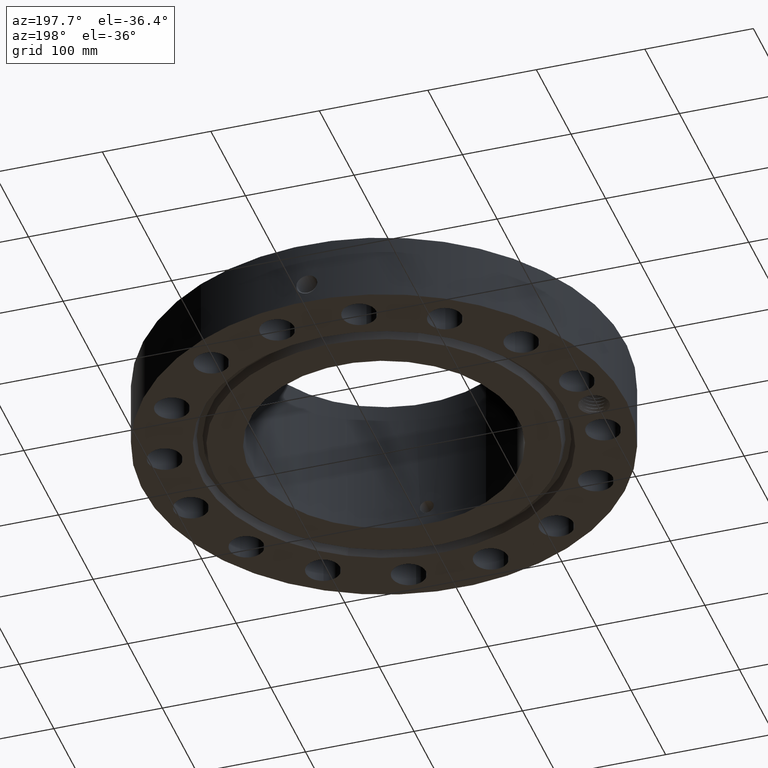
[diagram: clean part render]
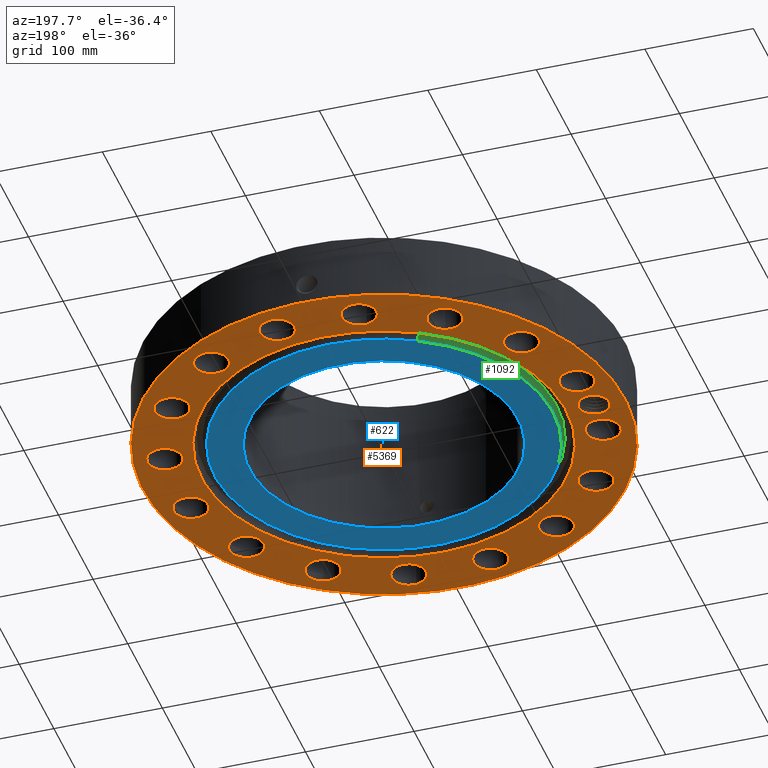
[diagram: same view with three faces highlighted in distinct colors, each labeled with its STEP entity id]
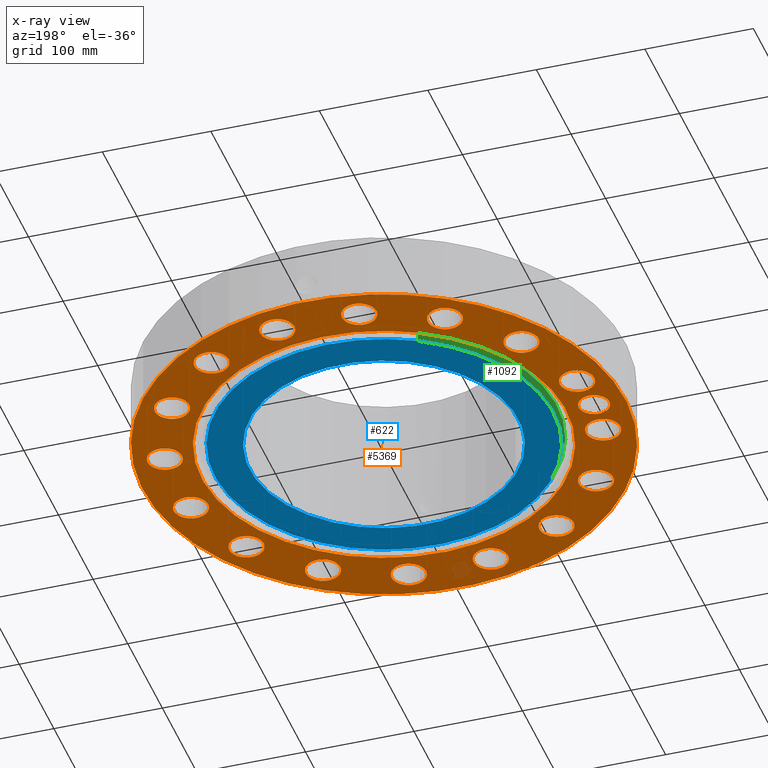
[diagram: x-ray of the same camera — body ghosted, the three highlighted faces saturated]
A machine part, auxiliary view with three faces highlighted in distinct colors.
The next image is the same camera in x-ray (body ghosted, the three faces saturated) — at least one of them is partly hidden behind the body in this view.
Their STEP definitions:

[orange] entity #5369 — the highlighted planar face has unit normal (0, 0, -1).
#598=AXIS2_PLACEMENT_3D('Plane Axis2P3D',#595,#596,#597) ;
#3620=AXIS2_PLACEMENT_3D('Circle Axis2P3D',#3618,#3619,$) ;
#3646=AXIS2_PLACEMENT_3D('Circle Axis2P3D',#3644,#3645,$) ;
#3919=AXIS2_PLACEMENT_3D('Circle Axis2P3D',#3917,#3918,$) ;
#4032=AXIS2_PLACEMENT_3D('Circle Axis2P3D',#4030,#4031,$) ;
#4274=AXIS2_PLACEMENT_3D('Circle Axis2P3D',#4272,#4273,$) ;
#4293=AXIS2_PLACEMENT_3D('Circle Axis2P3D',#4291,#4292,$) ;
#4317=AXIS2_PLACEMENT_3D('Circle Axis2P3D',#4315,#4316,$) ;
#4336=AXIS2_PLACEMENT_3D('Circle Axis2P3D',#4334,#4335,$) ;
#4360=AXIS2_PLACEMENT_3D('Circle Axis2P3D',#4358,#4359,$) ;
#4379=AXIS2_PLACEMENT_3D('Circle Axis2P3D',#4377,#4378,$) ;
#4403=AXIS2_PLACEMENT_3D('Circle Axis2P3D',#4401,#4402,$) ;
#4422=AXIS2_PLACEMENT_3D('Circle Axis2P3D',#4420,#4421,$) ;
#4446=AXIS2_PLACEMENT_3D('Circle Axis2P3D',#4444,#4445,$) ;
#4465=AXIS2_PLACEMENT_3D('Circle Axis2P3D',#4463,#4464,$) ;
#4489=AXIS2_PLACEMENT_3D('Circle Axis2P3D',#4487,#4488,$) ;
#4508=AXIS2_PLACEMENT_3D('Circle Axis2P3D',#4506,#4507,$) ;
#4532=AXIS2_PLACEMENT_3D('Circle Axis2P3D',#4530,#4531,$) ;
#4551=AXIS2_PLACEMENT_3D('Circle Axis2P3D',#4549,#4550,$) ;
#4575=AXIS2_PLACEMENT_3D('Circle Axis2P3D',#4573,#4574,$) ;
#4594=AXIS2_PLACEMENT_3D('Circle Axis2P3D',#4592,#4593,$) ;
#4618=AXIS2_PLACEMENT_3D('Circle Axis2P3D',#4616,#4617,$) ;
#4637=AXIS2_PLACEMENT_3D('Circle Axis2P3D',#4635,#4636,$) ;
#4661=AXIS2_PLACEMENT_3D('Circle Axis2P3D',#4659,#4660,$) ;
#4680=AXIS2_PLACEMENT_3D('Circle Axis2P3D',#4678,#4679,$) ;
#4704=AXIS2_PLACEMENT_3D('Circle Axis2P3D',#4702,#4703,$) ;
#4723=AXIS2_PLACEMENT_3D('Circle Axis2P3D',#4721,#4722,$) ;
#4747=AXIS2_PLACEMENT_3D('Circle Axis2P3D',#4745,#4746,$) ;
#4766=AXIS2_PLACEMENT_3D('Circle Axis2P3D',#4764,#4765,$) ;
#4790=AXIS2_PLACEMENT_3D('Circle Axis2P3D',#4788,#4789,$) ;
#4809=AXIS2_PLACEMENT_3D('Circle Axis2P3D',#4807,#4808,$) ;
#4833=AXIS2_PLACEMENT_3D('Circle Axis2P3D',#4831,#4832,$) ;
#4852=AXIS2_PLACEMENT_3D('Circle Axis2P3D',#4850,#4851,$) ;
#4876=AXIS2_PLACEMENT_3D('Circle Axis2P3D',#4874,#4875,$) ;
#4895=AXIS2_PLACEMENT_3D('Circle Axis2P3D',#4893,#4894,$) ;
#4919=AXIS2_PLACEMENT_3D('Circle Axis2P3D',#4917,#4918,$) ;
#4938=AXIS2_PLACEMENT_3D('Circle Axis2P3D',#4936,#4937,$) ;
#5249=AXIS2_PLACEMENT_3D('Circle Axis2P3D',#5247,#5248,$) ;
#5258=AXIS2_PLACEMENT_3D('Circle Axis2P3D',#5256,#5257,$) ;
#595=CARTESIAN_POINT('Axis2P3D Location',(0.,4.87500000002,0.)) ;
#3618=CARTESIAN_POINT('Axis2P3D Location',(0.,0.,0.)) ;
#3622=CARTESIAN_POINT('Vertex',(-3.16876309742,5.80038194284,0.)) ;
#3624=CARTESIAN_POINT('Vertex',(3.16876309742,-5.80038194284,0.)) ;
#3644=CARTESIAN_POINT('Axis2P3D Location',(0.,0.,0.)) ;
#3917=CARTESIAN_POINT('Axis2P3D Location',(0.,0.,5.59482469102E-016)) ;
#3921=CARTESIAN_POINT('Vertex',(-4.1949734628,-7.67884741657,5.59482469102E-016)) ;
#3923=CARTESIAN_POINT('Vertex',(4.1949734628,7.67884741657,5.59482469102E-016)) ;
#4030=CARTESIAN_POINT('Axis2P3D Location',(0.,0.,5.59482469102E-016)) ;
#4269=CARTESIAN_POINT('Vertex',(8.02697686429,-1.78720466701,2.79741234551E-016)) ;
#4272=CARTESIAN_POINT('Axis2P3D Location',(7.4784877631,-1.48756370538,0.)) ;
#4276=CARTESIAN_POINT('Vertex',(6.92999866192,-1.18792274375,2.79741234551E-016)) ;
#4291=CARTESIAN_POINT('Axis2P3D Location',(7.4784877631,-1.48756370538,0.)) ;
#4312=CARTESIAN_POINT('Vertex',(5.94788557112,-3.74949318338,0.)) ;
#4315=CARTESIAN_POINT('Axis2P3D Location',(6.33995579383,-4.23622302679,0.)) ;
#4319=CARTESIAN_POINT('Vertex',(6.73202601655,-4.7229528702,2.79741234551E-016)) ;
#4334=CARTESIAN_POINT('Axis2P3D Location',(6.33995579383,-4.23622302679,0.)) ;
#4355=CARTESIAN_POINT('Vertex',(4.06026081983,-5.74023727509,0.)) ;
#4358=CARTESIAN_POINT('Axis2P3D Location',(4.23622302679,-6.33995579383,0.)) ;
#4362=CARTESIAN_POINT('Vertex',(4.41218523376,-6.93967431258,2.79741234551E-016)) ;
#4377=CARTESIAN_POINT('Axis2P3D Location',(4.23622302679,-6.33995579383,0.)) ;
#4398=CARTESIAN_POINT('Vertex',(1.55449816507,-6.85708227704,0.)) ;
#4401=CARTESIAN_POINT('Axis2P3D Location',(1.48756370538,-7.4784877631,0.)) ;
#4405=CARTESIAN_POINT('Vertex',(1.42062924568,-8.09989324917,2.79741234551E-016)) ;
#4420=CARTESIAN_POINT('Axis2P3D Location',(1.48756370538,-7.4784877631,0.)) ;
#4441=CARTESIAN_POINT('Vertex',(-1.18792274375,-6.92999866192,0.)) ;
#4444=CARTESIAN_POINT('Axis2P3D Location',(-1.48756370538,-7.4784877631,0.)) ;
#4448=CARTESIAN_POINT('Vertex',(-1.78720466701,-8.02697686429,2.79741234551E-016)) ;
#4463=CARTESIAN_POINT('Axis2P3D Location',(-1.48756370538,-7.4784877631,0.)) ;
#4484=CARTESIAN_POINT('Vertex',(-3.74949318338,-5.94788557112,0.)) ;
#4487=CARTESIAN_POINT('Axis2P3D Location',(-4.23622302679,-6.33995579383,0.)) ;
#4491=CARTESIAN_POINT('Vertex',(-4.7229528702,-6.73202601655,2.79741234551E-016)) ;
#4506=CARTESIAN_POINT('Axis2P3D Location',(-4.23622302679,-6.33995579383,0.)) ;
#4527=CARTESIAN_POINT('Vertex',(-5.74023727509,-4.06026081983,0.)) ;
#4530=CARTESIAN_POINT('Axis2P3D Location',(-6.33995579383,-4.23622302679,0.)) ;
#4534=CARTESIAN_POINT('Vertex',(-6.93967431258,-4.41218523376,2.79741234551E-016)) ;
#4549=CARTESIAN_POINT('Axis2P3D Location',(-6.33995579383,-4.23622302679,0.)) ;
#4570=CARTESIAN_POINT('Vertex',(-6.85708227704,-1.55449816507,0.)) ;
#4573=CARTESIAN_POINT('Axis2P3D Location',(-7.4784877631,-1.48756370538,0.)) ;
#4577=CARTESIAN_POINT('Vertex',(-8.09989324917,-1.42062924568,2.79741234551E-016)) ;
#4592=CARTESIAN_POINT('Axis2P3D Location',(-7.4784877631,-1.48756370538,0.)) ;
#4613=CARTESIAN_POINT('Vertex',(-6.92999866192,1.18792274375,0.)) ;
#4616=CARTESIAN_POINT('Axis2P3D Location',(-7.4784877631,1.48756370538,0.)) ;
#4620=CARTESIAN_POINT('Vertex',(-8.02697686429,1.78720466701,2.79741234551E-016)) ;
#4635=CARTESIAN_POINT('Axis2P3D Location',(-7.4784877631,1.48756370538,0.)) ;
#4656=CARTESIAN_POINT('Vertex',(-5.94788557112,3.74949318338,0.)) ;
#4659=CARTESIAN_POINT('Axis2P3D Location',(-6.33995579383,4.23622302679,0.)) ;
#4663=CARTESIAN_POINT('Vertex',(-6.73202601655,4.7229528702,2.79741234551E-016)) ;
#4678=CARTESIAN_POINT('Axis2P3D Location',(-6.33995579383,4.23622302679,0.)) ;
#4699=CARTESIAN_POINT('Vertex',(-4.06026081983,5.74023727509,0.)) ;
#4702=CARTESIAN_POINT('Axis2P3D Location',(-4.23622302679,6.33995579383,0.)) ;
#4706=CARTESIAN_POINT('Vertex',(-4.41218523376,6.93967431258,2.79741234551E-016)) ;
#4721=CARTESIAN_POINT('Axis2P3D Location',(-4.23622302679,6.33995579383,0.)) ;
#4742=CARTESIAN_POINT('Vertex',(-1.55449816507,6.85708227704,0.)) ;
#4745=CARTESIAN_POINT('Axis2P3D Location',(-1.48756370538,7.4784877631,0.)) ;
#4749=CARTESIAN_POINT('Vertex',(-1.42062924568,8.09989324917,2.79741234551E-016)) ;
#4764=CARTESIAN_POINT('Axis2P3D Location',(-1.48756370538,7.4784877631,0.)) ;
#4785=CARTESIAN_POINT('Vertex',(1.18792274375,6.92999866192,0.)) ;
#4788=CARTESIAN_POINT('Axis2P3D Location',(1.48756370538,7.4784877631,0.)) ;
#4792=CARTESIAN_POINT('Vertex',(1.78720466701,8.02697686429,2.79741234551E-016)) ;
#4807=CARTESIAN_POINT('Axis2P3D Location',(1.48756370538,7.4784877631,0.)) ;
#4828=CARTESIAN_POINT('Vertex',(3.74949318338,5.94788557112,0.)) ;
#4831=CARTESIAN_POINT('Axis2P3D Location',(4.23622302679,6.33995579383,-2.23792987641E-015)) ;
#4835=CARTESIAN_POINT('Vertex',(4.7229528702,6.73202601655,-1.95818864186E-015)) ;
#4850=CARTESIAN_POINT('Axis2P3D Location',(4.23622302679,6.33995579383,-2.23792987641E-015)) ;
#4871=CARTESIAN_POINT('Vertex',(5.74023727509,4.06026081983,0.)) ;
#4874=CARTESIAN_POINT('Axis2P3D Location',(6.33995579383,4.23622302679,0.)) ;
#4878=CARTESIAN_POINT('Vertex',(6.93967431258,4.41218523376,2.79741234551E-016)) ;
#4893=CARTESIAN_POINT('Axis2P3D Location',(6.33995579383,4.23622302679,0.)) ;
#4914=CARTESIAN_POINT('Vertex',(6.85708227704,1.55449816507,0.)) ;
#4917=CARTESIAN_POINT('Axis2P3D Location',(7.4784877631,1.48756370538,0.)) ;
#4921=CARTESIAN_POINT('Vertex',(8.09989324917,1.42062924568,2.79741234551E-016)) ;
#4936=CARTESIAN_POINT('Axis2P3D Location',(7.4784877631,1.48756370538,0.)) ;
#5247=CARTESIAN_POINT('Axis2P3D Location',(-7.62500000003,-1.67844740731E-015,0.)) ;
#5251=CARTESIAN_POINT('Vertex',(-8.10960109071,0.264738782418,0.)) ;
#5253=CARTESIAN_POINT('Vertex',(-7.10347520258,0.181484780746,0.)) ;
#5256=CARTESIAN_POINT('Axis2P3D Location',(-7.62500000003,-1.67844740731E-015,0.)) ;
#5260=CARTESIAN_POINT('Vertex',(-7.16095699738,-0.299314102055,0.)) ;
#5264=CARTESIAN_POINT('Control Point',(-7.06645770177,-0.066619324831,0.)) ;
#5265=CARTESIAN_POINT('Control Point',(-7.07416557925,-0.114681631053,0.)) ;
#5266=CARTESIAN_POINT('Control Point',(-7.08705587024,-0.161797235869,0.)) ;
#5267=CARTESIAN_POINT('Control Point',(-7.1049895585,-0.207205787391,0.)) ;
#5268=CARTESIAN_POINT('Control Point',(-7.12870956018,-0.252179608872,0.)) ;
#5269=CARTESIAN_POINT('Control Point',(-7.15712673033,-0.293821482082,0.)) ;
#5270=CARTESIAN_POINT('Control Point',(-7.15839437758,-0.295659032487,0.)) ;
#5271=CARTESIAN_POINT('Control Point',(-7.15967114838,-0.297489925957,0.)) ;
#5272=CARTESIAN_POINT('Control Point',(-7.16095699738,-0.299314102055,0.)) ;
#5273=CARTESIAN_POINT('Vertex',(-7.06645770177,-0.0666193248303,8.74191357973E-018)) ;
#5277=CARTESIAN_POINT('Control Point',(-7.06645770177,-0.0666193248303,0.)) ;
#5278=CARTESIAN_POINT('Control Point',(-7.06541165184,-0.0532892877084,0.)) ;
#5279=CARTESIAN_POINT('Control Point',(-7.06476226065,-0.0399344907738,0.)) ;
#5280=CARTESIAN_POINT('Control Point',(-7.06451065516,-0.0265709294098,0.)) ;
#5281=CARTESIAN_POINT('Control Point',(-7.06465703212,-0.0132147927792,0.)) ;
#5282=CARTESIAN_POINT('Control Point',(-7.06520066568,0.000117592400793,0.)) ;
#5283=CARTESIAN_POINT('Vertex',(-7.06520066568,0.000117592400795,-8.74191357973E-018)) ;
#5287=CARTESIAN_POINT('Control Point',(-7.06520066568,0.000117592400796,0.)) ;
#5288=CARTESIAN_POINT('Control Point',(-7.066723145,0.0374557605832,0.)) ;
#5289=CARTESIAN_POINT('Control Point',(-7.07136135531,0.074607630766,0.)) ;
#5290=CARTESIAN_POINT('Control Point',(-7.07909558712,0.111223558752,0.)) ;
#5291=CARTESIAN_POINT('Control Point',(-7.08984516472,0.146956936874,0.)) ;
#5292=CARTESIAN_POINT('Control Point',(-7.10347520258,0.181484780746,0.)) ;
#596=DIRECTION('Axis2P3D Direction',(0.,0.,-0.0393700787402)) ;
#597=DIRECTION('Axis2P3D XDirection',(0.0393700787402,0.,0.)) ;
#3619=DIRECTION('Axis2P3D Direction',(0.,0.,-0.0393700787402)) ;
#3645=DIRECTION('Axis2P3D Direction',(0.,0.,-0.0393700787402)) ;
#3918=DIRECTION('Axis2P3D Direction',(0.,0.,-0.0393700787402)) ;
#4031=DIRECTION('Axis2P3D Direction',(0.,0.,-0.0393700787402)) ;
#4273=DIRECTION('Axis2P3D Direction',(0.,-0.,-0.0393700787402)) ;
#4292=DIRECTION('Axis2P3D Direction',(0.,-0.,-0.0393700787402)) ;
#4316=DIRECTION('Axis2P3D Direction',(0.,-0.,-0.0393700787402)) ;
#4335=DIRECTION('Axis2P3D Direction',(0.,-0.,-0.0393700787402)) ;
#4359=DIRECTION('Axis2P3D Direction',(0.,-0.,-0.0393700787402)) ;
#4378=DIRECTION('Axis2P3D Direction',(0.,-0.,-0.0393700787402)) ;
#4402=DIRECTION('Axis2P3D Direction',(0.,-0.,-0.0393700787402)) ;
#4421=DIRECTION('Axis2P3D Direction',(0.,-0.,-0.0393700787402)) ;
#4445=DIRECTION('Axis2P3D Direction',(0.,-0.,-0.0393700787402)) ;
#4464=DIRECTION('Axis2P3D Direction',(0.,-0.,-0.0393700787402)) ;
#4488=DIRECTION('Axis2P3D Direction',(-0.,0.,-0.0393700787402)) ;
#4507=DIRECTION('Axis2P3D Direction',(-0.,0.,-0.0393700787402)) ;
#4531=DIRECTION('Axis2P3D Direction',(-0.,0.,-0.0393700787402)) ;
#4550=DIRECTION('Axis2P3D Direction',(-0.,0.,-0.0393700787402)) ;
#4574=DIRECTION('Axis2P3D Direction',(-0.,0.,-0.0393700787402)) ;
#4593=DIRECTION('Axis2P3D Direction',(-0.,0.,-0.0393700787402)) ;
#4617=DIRECTION('Axis2P3D Direction',(-0.,0.,-0.0393700787402)) ;
#4636=DIRECTION('Axis2P3D Direction',(-0.,0.,-0.0393700787402)) ;
#4660=DIRECTION('Axis2P3D Direction',(0.,0.,-0.0393700787402)) ;
#4679=DIRECTION('Axis2P3D Direction',(0.,0.,-0.0393700787402)) ;
#4703=DIRECTION('Axis2P3D Direction',(0.,0.,-0.0393700787402)) ;
#4722=DIRECTION('Axis2P3D Direction',(0.,0.,-0.0393700787402)) ;
#4746=DIRECTION('Axis2P3D Direction',(0.,0.,-0.0393700787402)) ;
#4765=DIRECTION('Axis2P3D Direction',(0.,0.,-0.0393700787402)) ;
#4789=DIRECTION('Axis2P3D Direction',(0.,0.,-0.0393700787402)) ;
#4808=DIRECTION('Axis2P3D Direction',(0.,0.,-0.0393700787402)) ;
#4832=DIRECTION('Axis2P3D Direction',(0.,0.,-0.0393700787402)) ;
#4851=DIRECTION('Axis2P3D Direction',(0.,0.,-0.0393700787402)) ;
#4875=DIRECTION('Axis2P3D Direction',(0.,0.,-0.0393700787402)) ;
#4894=DIRECTION('Axis2P3D Direction',(0.,0.,-0.0393700787402)) ;
#4918=DIRECTION('Axis2P3D Direction',(0.,0.,-0.0393700787402)) ;
#4937=DIRECTION('Axis2P3D Direction',(0.,0.,-0.0393700787402)) ;
#5248=DIRECTION('Axis2P3D Direction',(0.,0.,-0.0393700787402)) ;
#5257=DIRECTION('Axis2P3D Direction',(0.,0.,-0.0393700787402)) ;
#5244=ORIENTED_EDGE('',*,*,#3925,.T.) ;
#5245=ORIENTED_EDGE('',*,*,#4034,.T.) ;
#5295=ORIENTED_EDGE('',*,*,#5255,.F.) ;
#5296=ORIENTED_EDGE('',*,*,#5262,.F.) ;
#5297=ORIENTED_EDGE('',*,*,#5275,.F.) ;
#5298=ORIENTED_EDGE('',*,*,#5285,.T.) ;
#5299=ORIENTED_EDGE('',*,*,#5293,.T.) ;
#5302=ORIENTED_EDGE('',*,*,#4278,.F.) ;
#5303=ORIENTED_EDGE('',*,*,#4295,.F.) ;
#5306=ORIENTED_EDGE('',*,*,#4321,.F.) ;
#5307=ORIENTED_EDGE('',*,*,#4338,.F.) ;
#5310=ORIENTED_EDGE('',*,*,#4364,.F.) ;
#5311=ORIENTED_EDGE('',*,*,#4381,.F.) ;
#5314=ORIENTED_EDGE('',*,*,#4407,.F.) ;
#5315=ORIENTED_EDGE('',*,*,#4424,.F.) ;
#5318=ORIENTED_EDGE('',*,*,#4450,.F.) ;
#5319=ORIENTED_EDGE('',*,*,#4467,.F.) ;
#5322=ORIENTED_EDGE('',*,*,#4493,.F.) ;
#5323=ORIENTED_EDGE('',*,*,#4510,.F.) ;
#5326=ORIENTED_EDGE('',*,*,#4536,.F.) ;
#5327=ORIENTED_EDGE('',*,*,#4553,.F.) ;
#5330=ORIENTED_EDGE('',*,*,#4579,.F.) ;
#5331=ORIENTED_EDGE('',*,*,#4596,.F.) ;
#5334=ORIENTED_EDGE('',*,*,#4622,.F.) ;
#5335=ORIENTED_EDGE('',*,*,#4639,.F.) ;
#5338=ORIENTED_EDGE('',*,*,#4665,.F.) ;
#5339=ORIENTED_EDGE('',*,*,#4682,.F.) ;
#5342=ORIENTED_EDGE('',*,*,#4708,.F.) ;
#5343=ORIENTED_EDGE('',*,*,#4725,.F.) ;
#5346=ORIENTED_EDGE('',*,*,#4751,.F.) ;
#5347=ORIENTED_EDGE('',*,*,#4768,.F.) ;
#5350=ORIENTED_EDGE('',*,*,#4794,.F.) ;
#5351=ORIENTED_EDGE('',*,*,#4811,.F.) ;
#5354=ORIENTED_EDGE('',*,*,#4837,.F.) ;
#5355=ORIENTED_EDGE('',*,*,#4854,.F.) ;
#5358=ORIENTED_EDGE('',*,*,#4880,.F.) ;
#5359=ORIENTED_EDGE('',*,*,#4897,.F.) ;
#5362=ORIENTED_EDGE('',*,*,#4923,.F.) ;
#5363=ORIENTED_EDGE('',*,*,#4940,.F.) ;
#5366=ORIENTED_EDGE('',*,*,#3648,.F.) ;
#5367=ORIENTED_EDGE('',*,*,#3626,.F.) ;
#5300=FACE_BOUND('',#5294,.T.) ;
#5304=FACE_BOUND('',#5301,.T.) ;
#5308=FACE_BOUND('',#5305,.T.) ;
#5312=FACE_BOUND('',#5309,.T.) ;
#5316=FACE_BOUND('',#5313,.T.) ;
#5320=FACE_BOUND('',#5317,.T.) ;
#5324=FACE_BOUND('',#5321,.T.) ;
#5328=FACE_BOUND('',#5325,.T.) ;
#5332=FACE_BOUND('',#5329,.T.) ;
#5336=FACE_BOUND('',#5333,.T.) ;
#5340=FACE_BOUND('',#5337,.T.) ;
#5344=FACE_BOUND('',#5341,.T.) ;
#5348=FACE_BOUND('',#5345,.T.) ;
#5352=FACE_BOUND('',#5349,.T.) ;
#5356=FACE_BOUND('',#5353,.T.) ;
#5360=FACE_BOUND('',#5357,.T.) ;
#5364=FACE_BOUND('',#5361,.T.) ;
#5368=FACE_BOUND('',#5365,.T.) ;
#5369=ADVANCED_FACE('PartBody',(#5246,#5300,#5304,#5308,#5312,#5316,#5320,#5324,#5328,#5332,#5336,#5340,#5344,#5348,#5352,#5356,#5360,#5364,#5368),#599,.T.) ;
#5263=B_SPLINE_CURVE_WITH_KNOTS('',5,(#5264,#5265,#5266,#5267,#5268,#5269,#5270,#5271,#5272),.UNSPECIFIED.,.F.,.U.,(6,3,6),(0.,8.48152375635,8.87454047562),.UNSPECIFIED.) ;
#5276=B_SPLINE_CURVE_WITH_KNOTS('',5,(#5277,#5278,#5279,#5280,#5281,#5282),.UNSPECIFIED.,.F.,.U.,(6,6),(0.,2.32980021669),.UNSPECIFIED.) ;
#5286=B_SPLINE_CURVE_WITH_KNOTS('',5,(#5287,#5288,#5289,#5290,#5291,#5292),.UNSPECIFIED.,.F.,.U.,(6,6),(0.,6.52474940885),.UNSPECIFIED.) ;
#3621=CIRCLE('generated circle',#3620,6.60950000003) ;
#3647=CIRCLE('generated circle',#3646,6.60950000003) ;
#3920=CIRCLE('generated circle',#3919,8.75000000003) ;
#4033=CIRCLE('generated circle',#4032,8.75000000003) ;
#4275=CIRCLE('generated circle',#4274,0.625000000002) ;
#4294=CIRCLE('generated circle',#4293,0.625000000002) ;
#4318=CIRCLE('generated circle',#4317,0.625000000003) ;
#4337=CIRCLE('generated circle',#4336,0.625000000003) ;
#4361=CIRCLE('generated circle',#4360,0.625000000002) ;
#4380=CIRCLE('generated circle',#4379,0.625000000002) ;
#4404=CIRCLE('generated circle',#4403,0.625000000003) ;
#4423=CIRCLE('generated circle',#4422,0.625000000003) ;
#4447=CIRCLE('generated circle',#4446,0.625000000002) ;
#4466=CIRCLE('generated circle',#4465,0.625000000002) ;
#4490=CIRCLE('generated circle',#4489,0.625000000003) ;
#4509=CIRCLE('generated circle',#4508,0.625000000003) ;
#4533=CIRCLE('generated circle',#4532,0.625000000002) ;
#4552=CIRCLE('generated circle',#4551,0.625000000002) ;
#4576=CIRCLE('generated circle',#4575,0.625000000003) ;
#4595=CIRCLE('generated circle',#4594,0.625000000003) ;
#4619=CIRCLE('generated circle',#4618,0.625000000002) ;
#4638=CIRCLE('generated circle',#4637,0.625000000002) ;
#4662=CIRCLE('generated circle',#4661,0.625000000003) ;
#4681=CIRCLE('generated circle',#4680,0.625000000003) ;
#4705=CIRCLE('generated circle',#4704,0.625000000002) ;
#4724=CIRCLE('generated circle',#4723,0.625000000002) ;
#4748=CIRCLE('generated circle',#4747,0.625000000003) ;
#4767=CIRCLE('generated circle',#4766,0.625000000003) ;
#4791=CIRCLE('generated circle',#4790,0.625000000002) ;
#4810=CIRCLE('generated circle',#4809,0.625000000002) ;
#4834=CIRCLE('generated circle',#4833,0.625000000003) ;
#4853=CIRCLE('generated circle',#4852,0.625000000003) ;
#4877=CIRCLE('generated circle',#4876,0.625000000003) ;
#4896=CIRCLE('generated circle',#4895,0.625000000003) ;
#4920=CIRCLE('generated circle',#4919,0.625000000003) ;
#4939=CIRCLE('generated circle',#4938,0.625000000003) ;
#5250=CIRCLE('generated circle',#5249,0.552200000002) ;
#5259=CIRCLE('generated circle',#5258,0.552200000002) ;
#3626=EDGE_CURVE('',#3623,#3625,#3621,.T.) ;
#3648=EDGE_CURVE('',#3625,#3623,#3647,.T.) ;
#3925=EDGE_CURVE('',#3922,#3924,#3920,.T.) ;
#4034=EDGE_CURVE('',#3924,#3922,#4033,.T.) ;
#4278=EDGE_CURVE('',#4270,#4277,#4275,.T.) ;
#4295=EDGE_CURVE('',#4277,#4270,#4294,.T.) ;
#4321=EDGE_CURVE('',#4313,#4320,#4318,.T.) ;
#4338=EDGE_CURVE('',#4320,#4313,#4337,.T.) ;
#4364=EDGE_CURVE('',#4356,#4363,#4361,.T.) ;
#4381=EDGE_CURVE('',#4363,#4356,#4380,.T.) ;
#4407=EDGE_CURVE('',#4399,#4406,#4404,.T.) ;
#4424=EDGE_CURVE('',#4406,#4399,#4423,.T.) ;
#4450=EDGE_CURVE('',#4442,#4449,#4447,.T.) ;
#4467=EDGE_CURVE('',#4449,#4442,#4466,.T.) ;
#4493=EDGE_CURVE('',#4485,#4492,#4490,.T.) ;
#4510=EDGE_CURVE('',#4492,#4485,#4509,.T.) ;
#4536=EDGE_CURVE('',#4528,#4535,#4533,.T.) ;
#4553=EDGE_CURVE('',#4535,#4528,#4552,.T.) ;
#4579=EDGE_CURVE('',#4571,#4578,#4576,.T.) ;
#4596=EDGE_CURVE('',#4578,#4571,#4595,.T.) ;
#4622=EDGE_CURVE('',#4614,#4621,#4619,.T.) ;
#4639=EDGE_CURVE('',#4621,#4614,#4638,.T.) ;
#4665=EDGE_CURVE('',#4657,#4664,#4662,.T.) ;
#4682=EDGE_CURVE('',#4664,#4657,#4681,.T.) ;
#4708=EDGE_CURVE('',#4700,#4707,#4705,.T.) ;
#4725=EDGE_CURVE('',#4707,#4700,#4724,.T.) ;
#4751=EDGE_CURVE('',#4743,#4750,#4748,.T.) ;
#4768=EDGE_CURVE('',#4750,#4743,#4767,.T.) ;
#4794=EDGE_CURVE('',#4786,#4793,#4791,.T.) ;
#4811=EDGE_CURVE('',#4793,#4786,#4810,.T.) ;
#4837=EDGE_CURVE('',#4829,#4836,#4834,.T.) ;
#4854=EDGE_CURVE('',#4836,#4829,#4853,.T.) ;
#4880=EDGE_CURVE('',#4872,#4879,#4877,.T.) ;
#4897=EDGE_CURVE('',#4879,#4872,#4896,.T.) ;
#4923=EDGE_CURVE('',#4915,#4922,#4920,.T.) ;
#4940=EDGE_CURVE('',#4922,#4915,#4939,.T.) ;
#5255=EDGE_CURVE('',#5252,#5254,#5250,.T.) ;
#5262=EDGE_CURVE('',#5261,#5252,#5259,.T.) ;
#5275=EDGE_CURVE('',#5274,#5261,#5263,.T.) ;
#5285=EDGE_CURVE('',#5274,#5284,#5276,.T.) ;
#5293=EDGE_CURVE('',#5284,#5254,#5286,.T.) ;
#5243=EDGE_LOOP('',(#5244,#5245)) ;
#5294=EDGE_LOOP('',(#5295,#5296,#5297,#5298,#5299)) ;
#5301=EDGE_LOOP('',(#5302,#5303)) ;
#5305=EDGE_LOOP('',(#5306,#5307)) ;
#5309=EDGE_LOOP('',(#5310,#5311)) ;
#5313=EDGE_LOOP('',(#5314,#5315)) ;
#5317=EDGE_LOOP('',(#5318,#5319)) ;
#5321=EDGE_LOOP('',(#5322,#5323)) ;
#5325=EDGE_LOOP('',(#5326,#5327)) ;
#5329=EDGE_LOOP('',(#5330,#5331)) ;
#5333=EDGE_LOOP('',(#5334,#5335)) ;
#5337=EDGE_LOOP('',(#5338,#5339)) ;
#5341=EDGE_LOOP('',(#5342,#5343)) ;
#5345=EDGE_LOOP('',(#5346,#5347)) ;
#5349=EDGE_LOOP('',(#5350,#5351)) ;
#5353=EDGE_LOOP('',(#5354,#5355)) ;
#5357=EDGE_LOOP('',(#5358,#5359)) ;
#5361=EDGE_LOOP('',(#5362,#5363)) ;
#5365=EDGE_LOOP('',(#5366,#5367)) ;
#5246=FACE_OUTER_BOUND('',#5243,.T.) ;
#599=PLANE('',#598) ;
#3623=VERTEX_POINT('',#3622) ;
#3625=VERTEX_POINT('',#3624) ;
#3922=VERTEX_POINT('',#3921) ;
#3924=VERTEX_POINT('',#3923) ;
#4270=VERTEX_POINT('',#4269) ;
#4277=VERTEX_POINT('',#4276) ;
#4313=VERTEX_POINT('',#4312) ;
#4320=VERTEX_POINT('',#4319) ;
#4356=VERTEX_POINT('',#4355) ;
#4363=VERTEX_POINT('',#4362) ;
#4399=VERTEX_POINT('',#4398) ;
#4406=VERTEX_POINT('',#4405) ;
#4442=VERTEX_POINT('',#4441) ;
#4449=VERTEX_POINT('',#4448) ;
#4485=VERTEX_POINT('',#4484) ;
#4492=VERTEX_POINT('',#4491) ;
#4528=VERTEX_POINT('',#4527) ;
#4535=VERTEX_POINT('',#4534) ;
#4571=VERTEX_POINT('',#4570) ;
#4578=VERTEX_POINT('',#4577) ;
#4614=VERTEX_POINT('',#4613) ;
#4621=VERTEX_POINT('',#4620) ;
#4657=VERTEX_POINT('',#4656) ;
#4664=VERTEX_POINT('',#4663) ;
#4700=VERTEX_POINT('',#4699) ;
#4707=VERTEX_POINT('',#4706) ;
#4743=VERTEX_POINT('',#4742) ;
#4750=VERTEX_POINT('',#4749) ;
#4786=VERTEX_POINT('',#4785) ;
#4793=VERTEX_POINT('',#4792) ;
#4829=VERTEX_POINT('',#4828) ;
#4836=VERTEX_POINT('',#4835) ;
#4872=VERTEX_POINT('',#4871) ;
#4879=VERTEX_POINT('',#4878) ;
#4915=VERTEX_POINT('',#4914) ;
#4922=VERTEX_POINT('',#4921) ;
#5252=VERTEX_POINT('',#5251) ;
#5254=VERTEX_POINT('',#5253) ;
#5261=VERTEX_POINT('',#5260) ;
#5274=VERTEX_POINT('',#5273) ;
#5284=VERTEX_POINT('',#5283) ;

[blue] entity #622 — the highlighted planar face has unit normal (0, 0, -1).
#252=AXIS2_PLACEMENT_3D('Circle Axis2P3D',#250,#251,$) ;
#543=AXIS2_PLACEMENT_3D('Circle Axis2P3D',#541,#542,$) ;
#598=AXIS2_PLACEMENT_3D('Plane Axis2P3D',#595,#596,#597) ;
#602=AXIS2_PLACEMENT_3D('Circle Axis2P3D',#600,#601,$) ;
#611=AXIS2_PLACEMENT_3D('Circle Axis2P3D',#609,#610,$) ;
#247=CARTESIAN_POINT('Vertex',(2.3371995007,4.27821498923,-1.56655091349E-014)) ;
#250=CARTESIAN_POINT('Axis2P3D Location',(0.,0.,-1.67844740731E-014)) ;
#254=CARTESIAN_POINT('Vertex',(-2.3371995007,-4.27821498923,-1.56655091349E-014)) ;
#541=CARTESIAN_POINT('Axis2P3D Location',(0.,0.,-1.67844740731E-014)) ;
#595=CARTESIAN_POINT('Axis2P3D Location',(0.,4.87500000002,0.)) ;
#600=CARTESIAN_POINT('Axis2P3D Location',(1.1189649382E-015,5.59482469102E-016,0.)) ;
#604=CARTESIAN_POINT('Vertex',(-2.94391251981,5.38879572131,0.)) ;
#606=CARTESIAN_POINT('Vertex',(2.94391251981,-5.38879572131,0.)) ;
#609=CARTESIAN_POINT('Axis2P3D Location',(-1.1189649382E-015,0.,0.)) ;
#251=DIRECTION('Axis2P3D Direction',(0.,0.,-0.0393700787402)) ;
#542=DIRECTION('Axis2P3D Direction',(0.,0.,-0.0393700787402)) ;
#596=DIRECTION('Axis2P3D Direction',(0.,0.,-0.0393700787402)) ;
#597=DIRECTION('Axis2P3D XDirection',(0.0393700787402,0.,0.)) ;
#601=DIRECTION('Axis2P3D Direction',(0.,0.,-0.0393700787402)) ;
#610=DIRECTION('Axis2P3D Direction',(0.,0.,-0.0393700787402)) ;
#615=ORIENTED_EDGE('',*,*,#608,.T.) ;
#616=ORIENTED_EDGE('',*,*,#613,.T.) ;
#619=ORIENTED_EDGE('',*,*,#256,.F.) ;
#620=ORIENTED_EDGE('',*,*,#545,.F.) ;
#621=FACE_BOUND('',#618,.T.) ;
#622=ADVANCED_FACE('PartBody',(#617,#621),#599,.T.) ;
#253=CIRCLE('generated circle',#252,4.87500000002) ;
#544=CIRCLE('generated circle',#543,4.87500000002) ;
#603=CIRCLE('generated circle',#602,6.14050000002) ;
#612=CIRCLE('generated circle',#611,6.14050000002) ;
#256=EDGE_CURVE('',#248,#255,#253,.T.) ;
#545=EDGE_CURVE('',#255,#248,#544,.T.) ;
#608=EDGE_CURVE('',#605,#607,#603,.T.) ;
#613=EDGE_CURVE('',#607,#605,#612,.T.) ;
#614=EDGE_LOOP('',(#615,#616)) ;
#618=EDGE_LOOP('',(#619,#620)) ;
#617=FACE_OUTER_BOUND('',#614,.T.) ;
#599=PLANE('',#598) ;
#248=VERTEX_POINT('',#247) ;
#255=VERTEX_POINT('',#254) ;
#605=VERTEX_POINT('',#604) ;
#607=VERTEX_POINT('',#606) ;

[green] entity #1092 — the highlighted conical surface has half-angle 23 deg.
#611=AXIS2_PLACEMENT_3D('Circle Axis2P3D',#609,#610,$) ;
#1053=AXIS2_PLACEMENT_3D('Cone Axis2P3D',#1050,#1051,#1052) ;
#1083=AXIS2_PLACEMENT_3D('Circle Axis2P3D',#1081,#1082,$) ;
#604=CARTESIAN_POINT('Vertex',(-2.94391251981,5.38879572131,0.)) ;
#606=CARTESIAN_POINT('Vertex',(2.94391251981,-5.38879572131,0.)) ;
#609=CARTESIAN_POINT('Axis2P3D Location',(-1.1189649382E-015,0.,0.)) ;
#1050=CARTESIAN_POINT('Axis2P3D Location',(0.,0.,-0.0600000000002)) ;
#1055=CARTESIAN_POINT('Line Origine',(-2.97379932392,5.44350314927,0.146860966928)) ;
#1059=CARTESIAN_POINT('Vertex',(-3.00368612803,5.49821057724,0.293721933856)) ;
#1066=CARTESIAN_POINT('Vertex',(3.00368612803,-5.49821057724,0.293721933856)) ;
#1069=CARTESIAN_POINT('Line Origine',(2.97379932392,-5.44350314927,0.146860966928)) ;
#1081=CARTESIAN_POINT('Axis2P3D Location',(0.,0.,0.293721933856)) ;
#610=DIRECTION('Axis2P3D Direction',(0.,0.,-0.0393700787402)) ;
#1051=DIRECTION('Axis2P3D Direction',(0.,0.,0.0393700787402)) ;
#1052=DIRECTION('Axis2P3D XDirection',(-0.0188750212049,0.0345504945626,0.)) ;
#1056=DIRECTION('Vector Direction',(-0.00737505833565,0.0134999537303,0.0362403485611)) ;
#1070=DIRECTION('Vector Direction',(0.00737505833565,-0.0134999537303,0.0362403485611)) ;
#1082=DIRECTION('Axis2P3D Direction',(0.,0.,0.0393700787402)) ;
#1057=VECTOR('Line Direction',#1056,0.0393700787402) ;
#1071=VECTOR('Line Direction',#1070,0.0393700787402) ;
#1087=ORIENTED_EDGE('',*,*,#1073,.F.) ;
#1088=ORIENTED_EDGE('',*,*,#1085,.F.) ;
#1089=ORIENTED_EDGE('',*,*,#1061,.T.) ;
#1090=ORIENTED_EDGE('',*,*,#613,.F.) ;
#1092=ADVANCED_FACE('PartBody',(#1091),#1054,.T.) ;
#612=CIRCLE('generated circle',#611,6.14050000002) ;
#1084=CIRCLE('generated circle',#1083,6.26517756391) ;
#1054=CONICAL_SURFACE('Cone',#1053,6.11503151105,0.401425727959) ;
#613=EDGE_CURVE('',#607,#605,#612,.T.) ;
#1061=EDGE_CURVE('',#1060,#605,#1058,.F.) ;
#1073=EDGE_CURVE('',#1067,#607,#1072,.F.) ;
#1085=EDGE_CURVE('',#1060,#1067,#1084,.T.) ;
#1086=EDGE_LOOP('',(#1087,#1088,#1089,#1090)) ;
#1091=FACE_OUTER_BOUND('',#1086,.T.) ;
#1058=LINE('Line',#1055,#1057) ;
#1072=LINE('Line',#1069,#1071) ;
#605=VERTEX_POINT('',#604) ;
#607=VERTEX_POINT('',#606) ;
#1060=VERTEX_POINT('',#1059) ;
#1067=VERTEX_POINT('',#1066) ;